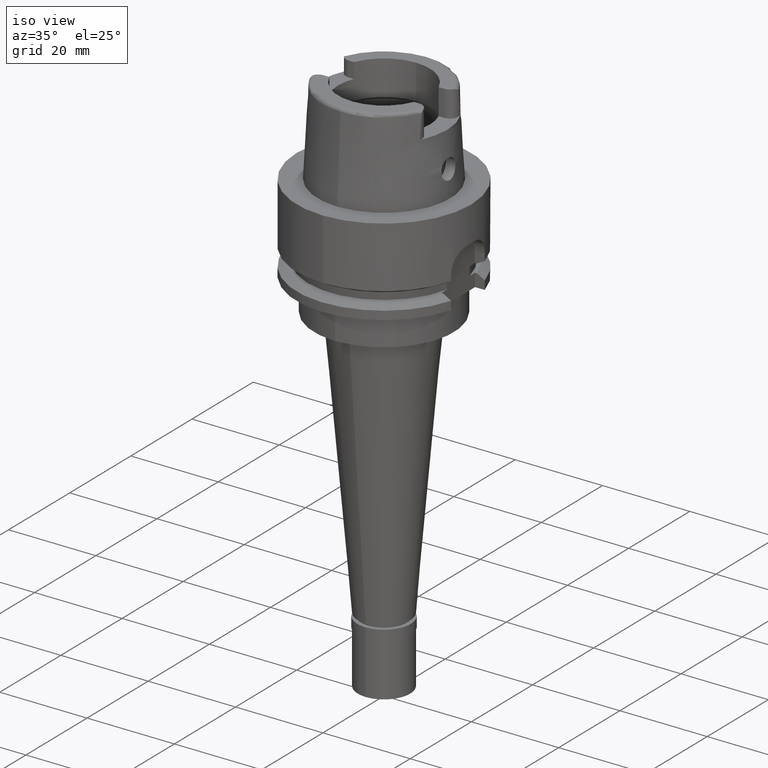
[diagram: clean part render]
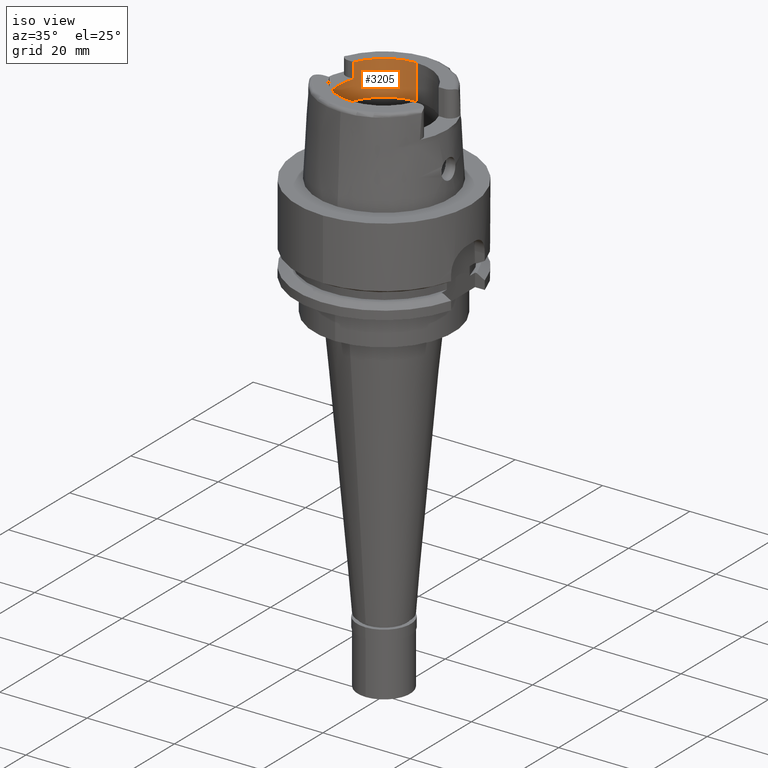
[diagram: same view with one face highlighted and labeled with its STEP entity id]
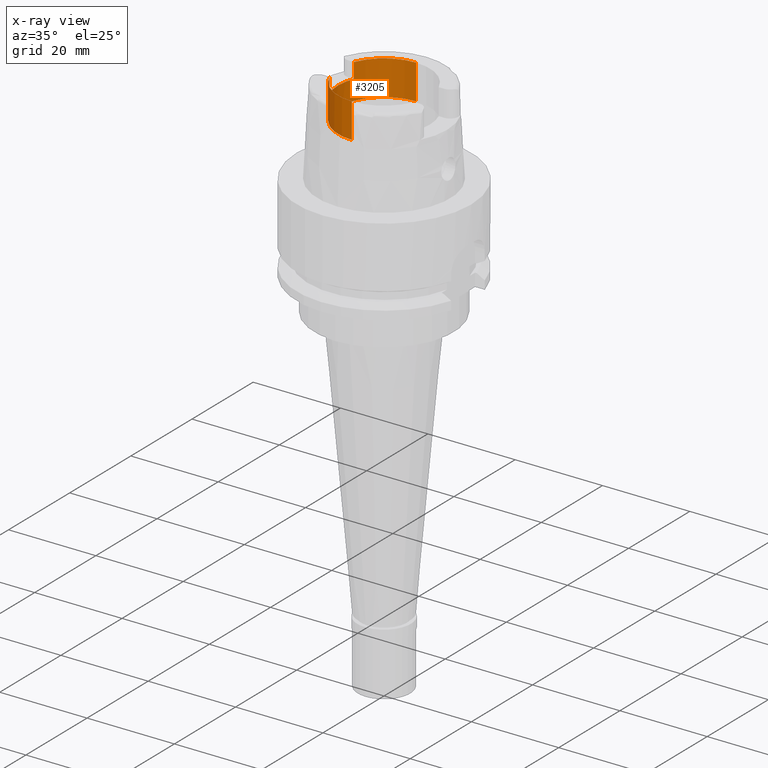
[diagram: x-ray of the same camera — body ghosted, the highlighted face saturated]
A machine part, iso view. The second image highlights one B-rep face of the part: STEP entity #3205.
The next image is the same camera in x-ray: the body ghosted, the highlighted face saturated — about 0% of this face is hidden behind the body in this view.
In plain terms, the highlighted cylindrical surface (partial cylindrical patch) has radius 10.5 mm, axis along (0, 0, -1).
Its self-contained STEP definition (entity closure, byte-faithful):
#6 = VERTEX_POINT ( 'NONE', #1137 ) ;
#123 = DIRECTION ( 'NONE',  ( 0.0000000000000000000, 1.000000000000000000, 0.0000000000000000000 ) ) ;
#156 = CARTESIAN_POINT ( 'NONE',  ( 0.0000000000000000000, 10.50000000000000000, 11.99735026918999914 ) ) ;
#163 = VECTOR ( 'NONE', #492, 1000.000000000000000 ) ;
#204 = CARTESIAN_POINT ( 'NONE',  ( -9.697905701747998819, -4.025000000000000355, 20.00000000000000000 ) ) ;
#210 = CYLINDRICAL_SURFACE ( 'NONE', #3458, 10.50000000000000000 ) ;
#218 = CIRCLE ( 'NONE', #714, 10.49999999999999822 ) ;
#310 = VERTEX_POINT ( 'NONE', #156 ) ;
#340 = DIRECTION ( 'NONE',  ( -0.9236100668331782559, 0.3833333333332911153, 0.0000000000000000000 ) ) ;
#341 = VERTEX_POINT ( 'NONE', #575 ) ;
#477 = VECTOR ( 'NONE', #2571, 1000.000000000000000 ) ;
#492 = DIRECTION ( 'NONE',  ( 0.0000000000000000000, 0.0000000000000000000, 1.000000000000000000 ) ) ;
#575 = CARTESIAN_POINT ( 'NONE',  ( -9.697905701747998819, -4.025000000000000355, 16.50000000000000000 ) ) ;
#696 = EDGE_LOOP ( 'NONE', ( #4352, #1015, #3749, #3619, #923, #3877, #3716, #3318 ) ) ;
#714 = AXIS2_PLACEMENT_3D ( 'NONE', #1201, #5202, #340 ) ;
#774 = EDGE_CURVE ( 'NONE', #2564, #341, #218, .T. ) ;
#889 = CARTESIAN_POINT ( 'NONE',  ( -9.697905701747998819, 4.025000000000000355, 16.50000000000000000 ) ) ;
#923 = ORIENTED_EDGE ( 'NONE', *, *, #1708, .T. ) ;
#987 = VECTOR ( 'NONE', #4377, 1000.000000000000000 ) ;
#1015 = ORIENTED_EDGE ( 'NONE', *, *, #1648, .T. ) ;
#1050 = CARTESIAN_POINT ( 'NONE',  ( 0.0000000000000000000, 1.543667290324999758E-14, 26.05000000000000071 ) ) ;
#1137 = CARTESIAN_POINT ( 'NONE',  ( -9.697905701747998819, 4.025000000000000355, 20.00000000000000000 ) ) ;
#1201 = CARTESIAN_POINT ( 'NONE',  ( 0.0000000000000000000, 1.543667290324999758E-14, 16.50000000000000000 ) ) ;
#1433 = CARTESIAN_POINT ( 'NONE',  ( 0.0000000000000000000, -10.50000000000000000, 11.99735026918999914 ) ) ;
#1452 = AXIS2_PLACEMENT_3D ( 'NONE', #3745, #3721, #3376 ) ;
#1648 = EDGE_CURVE ( 'NONE', #3449, #2286, #4864, .T. ) ;
#1677 = AXIS2_PLACEMENT_3D ( 'NONE', #2085, #3750, #123 ) ;
#1708 = EDGE_CURVE ( 'NONE', #310, #3825, #3850, .T. ) ;
#1748 = EDGE_CURVE ( 'NONE', #3449, #341, #4615, .T. ) ;
#1795 = DIRECTION ( 'NONE',  ( 0.0000000000000000000, -1.000000000000000000, 0.0000000000000000000 ) ) ;
#2010 = CARTESIAN_POINT ( 'NONE',  ( 0.0000000000000000000, 10.50000000000000000, 20.00000000000000000 ) ) ;
#2085 = CARTESIAN_POINT ( 'NONE',  ( 0.0000000000000000000, 1.543667290324999758E-14, 20.00000000000000000 ) ) ;
#2186 = VECTOR ( 'NONE', #5183, 1000.000000000000000 ) ;
#2224 = CARTESIAN_POINT ( 'NONE',  ( 0.0000000000000000000, -10.50000000000000000, 20.00000000000000000 ) ) ;
#2286 = VERTEX_POINT ( 'NONE', #2224 ) ;
#2564 = VERTEX_POINT ( 'NONE', #889 ) ;
#2571 = DIRECTION ( 'NONE',  ( 0.0000000000000000000, 4.506013014787999900E-14, 1.000000000000000000 ) ) ;
#2599 = DIRECTION ( 'NONE',  ( 0.0000000000000000000, 0.0000000000000000000, 1.000000000000000000 ) ) ;
#2608 = FACE_OUTER_BOUND ( 'NONE', #696, .T. ) ;
#2626 = VERTEX_POINT ( 'NONE', #1433 ) ;
#2917 = CARTESIAN_POINT ( 'NONE',  ( 0.0000000000000000000, 10.50000000000000000, 11.99735026918999914 ) ) ;
#2941 = EDGE_CURVE ( 'NONE', #2626, #2286, #4388, .T. ) ;
#3016 = EDGE_CURVE ( 'NONE', #3825, #6, #4229, .T. ) ;
#3038 = EDGE_CURVE ( 'NONE', #2564, #6, #4596, .T. ) ;
#3185 = CARTESIAN_POINT ( 'NONE',  ( -9.697905701747998819, -4.025000000000000355, 20.00000000000000000 ) ) ;
#3205 = ADVANCED_FACE ( 'NONE', ( #2608 ), #210, .F. ) ;
#3307 = CIRCLE ( 'NONE', #1452, 10.50000000000000000 ) ;
#3318 = ORIENTED_EDGE ( 'NONE', *, *, #774, .T. ) ;
#3376 = DIRECTION ( 'NONE',  ( 0.0000000000000000000, -1.000000000000000000, 0.0000000000000000000 ) ) ;
#3441 = AXIS2_PLACEMENT_3D ( 'NONE', #4201, #2599, #4644 ) ;
#3449 = VERTEX_POINT ( 'NONE', #3185 ) ;
#3458 = AXIS2_PLACEMENT_3D ( 'NONE', #1050, #3910, #1795 ) ;
#3571 = CARTESIAN_POINT ( 'NONE',  ( 0.0000000000000000000, -10.50000000000000000, 11.99735026918999914 ) ) ;
#3619 = ORIENTED_EDGE ( 'NONE', *, *, #4553, .T. ) ;
#3716 = ORIENTED_EDGE ( 'NONE', *, *, #3038, .F. ) ;
#3721 = DIRECTION ( 'NONE',  ( 0.0000000000000000000, 0.0000000000000000000, -1.000000000000000000 ) ) ;
#3745 = CARTESIAN_POINT ( 'NONE',  ( 0.0000000000000000000, 1.363617650911000050E-14, 11.99735026918999914 ) ) ;
#3749 = ORIENTED_EDGE ( 'NONE', *, *, #2941, .F. ) ;
#3750 = DIRECTION ( 'NONE',  ( 0.0000000000000000000, 0.0000000000000000000, 1.000000000000000000 ) ) ;
#3825 = VERTEX_POINT ( 'NONE', #2010 ) ;
#3850 = LINE ( 'NONE', #2917, #477 ) ;
#3877 = ORIENTED_EDGE ( 'NONE', *, *, #3016, .T. ) ;
#3910 = DIRECTION ( 'NONE',  ( 0.0000000000000000000, 0.0000000000000000000, -1.000000000000000000 ) ) ;
#4201 = CARTESIAN_POINT ( 'NONE',  ( 0.0000000000000000000, 1.543667290324999758E-14, 20.00000000000000000 ) ) ;
#4229 = CIRCLE ( 'NONE', #1677, 10.50000000000000000 ) ;
#4352 = ORIENTED_EDGE ( 'NONE', *, *, #1748, .F. ) ;
#4377 = DIRECTION ( 'NONE',  ( -1.015061051086000057E-14, 0.0000000000000000000, -1.000000000000000000 ) ) ;
#4388 = LINE ( 'NONE', #3571, #2186 ) ;
#4553 = EDGE_CURVE ( 'NONE', #2626, #310, #3307, .T. ) ;
#4596 = LINE ( 'NONE', #4997, #163 ) ;
#4615 = LINE ( 'NONE', #204, #987 ) ;
#4644 = DIRECTION ( 'NONE',  ( -0.9236100668331782559, -0.3833333333332911153, 0.0000000000000000000 ) ) ;
#4864 = CIRCLE ( 'NONE', #3441, 10.49999999999999822 ) ;
#4997 = CARTESIAN_POINT ( 'NONE',  ( -9.697905701747998819, 4.025000000000000355, 16.50000000000000000 ) ) ;
#5183 = DIRECTION ( 'NONE',  ( 0.0000000000000000000, -4.506013014787999900E-14, 1.000000000000000000 ) ) ;
#5202 = DIRECTION ( 'NONE',  ( 0.0000000000000000000, 0.0000000000000000000, 1.000000000000000000 ) ) ;